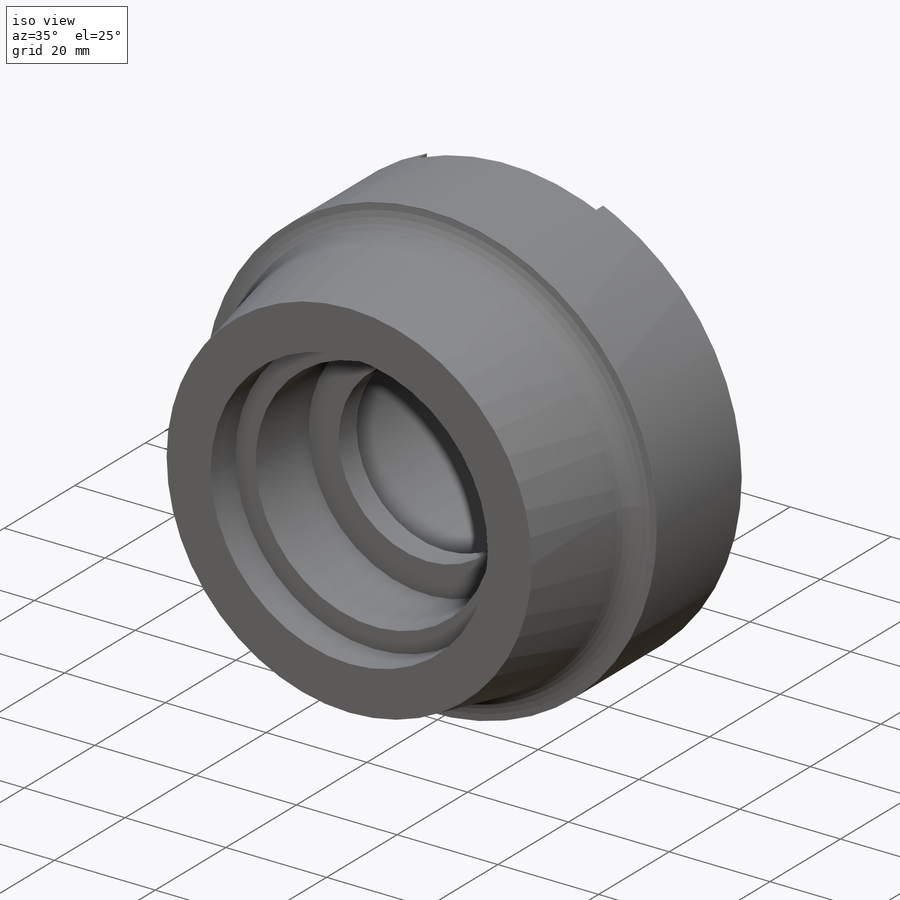
[diagram: iso view]
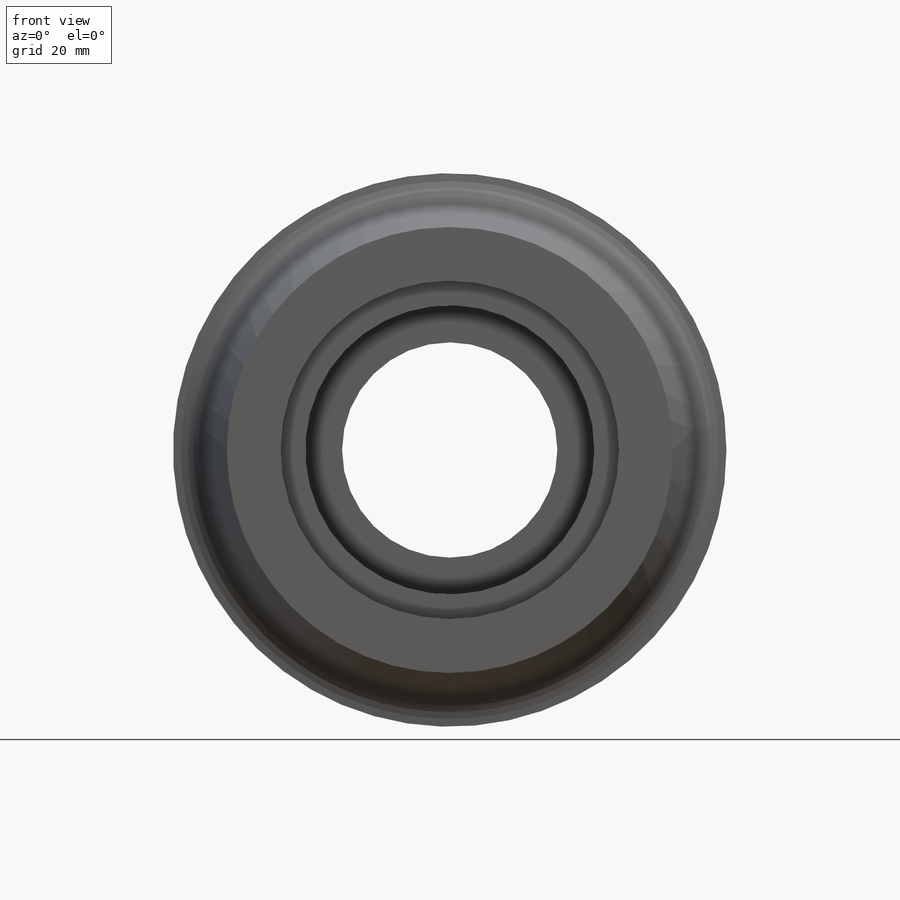
[diagram: front view]
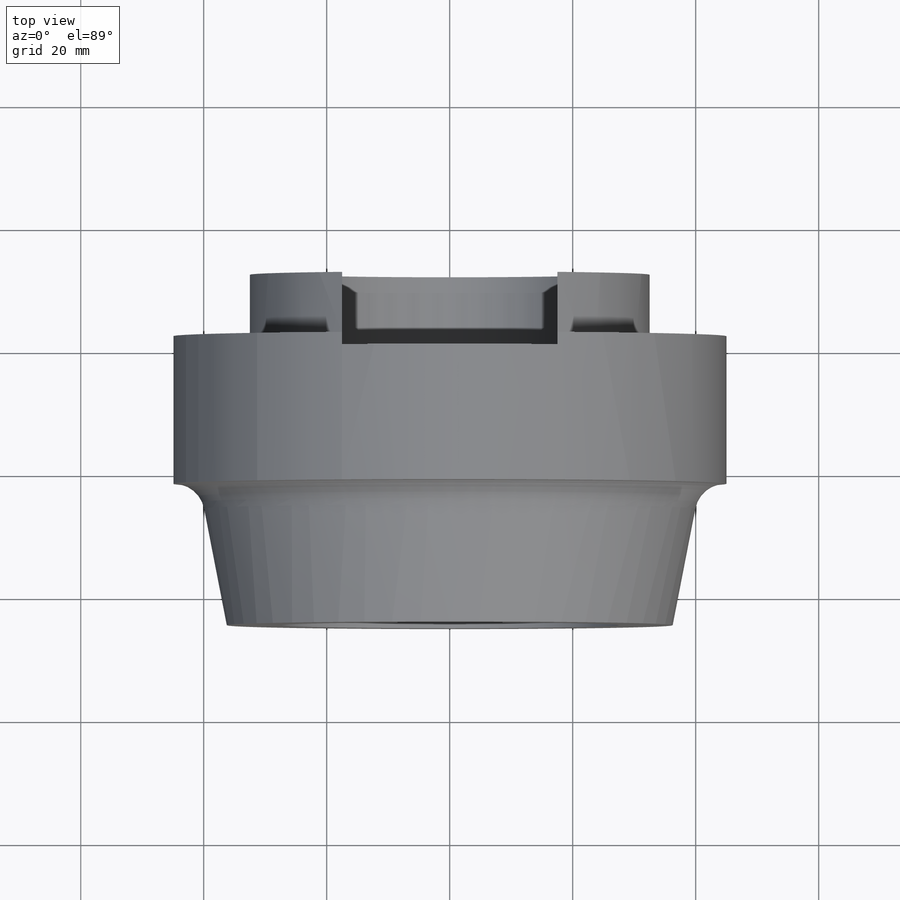
[diagram: top view]
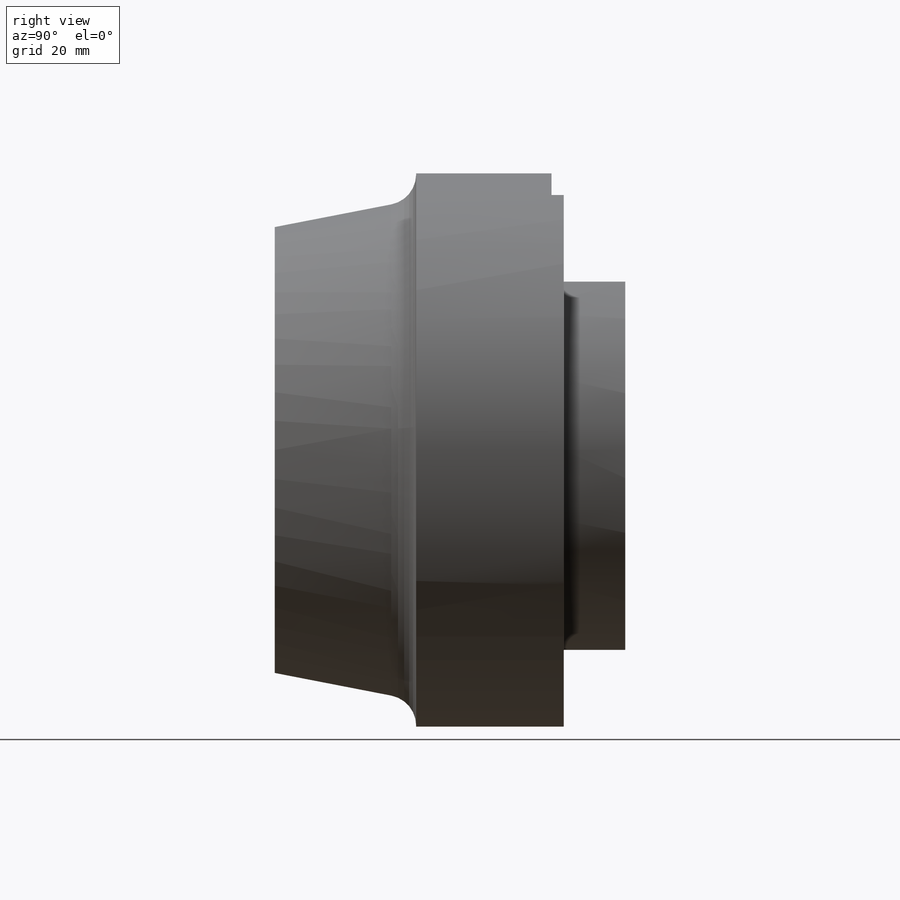
[diagram: right view]
SOLIDWORKS PART (.sldprt)
format: sldprt  version: not decoded by parser v0  size: 409,088 bytes
history: native  units: mm
features: sketch x12, cut_extrude x8, extrude x4, material x1, plane x1, fillet x1 (+11 scaffold rows collapsed)
feature tree (38):
  scaffold x11  (default folders/planes/origin — collapsed)
  material  "Material <not specified>"
  sketch  "Sketch1"
  extrude  "Boss-Extrude1"  Depth=45mm
  sketch  "Sketch2"
  cut_extrude  "Cut-Extrude1"  [1 undecoded]
  sketch  "Sketch3"
  extrude  "Boss-Extrude2"  [1 undecoded]
  sketch  "Sketch4"  dims[D1=~2.005352deg]
  cut_extrude  "Cut-Extrude2"  [1 undecoded]
  sketch  "Sketch5"  dims[D1=~2.692902deg]
  cut_extrude  "Cut-Extrude3"  [1 undecoded]
  sketch  "Sketch6"  dims[D1=~3.151268deg]
  cut_extrude  "Cut-Extrude4"  [1 undecoded]
  sketch  "Sketch7"  dims[D1=~2.692902deg]
  cut_extrude  "Cut-Extrude5"  [1 undecoded]
  plane  "Plane1"
  sketch  "Sketch8"  dims[D1=~0.687549deg D2=~2.864789deg D3=~0.54431deg]
  cut_extrude  "Cut-Extrude6"  [1 undecoded]
  sketch  "Sketch9"  dims[D1=~2.005352deg D2=~3.151268deg]
  cut_extrude  "Cut-Extrude7"  [1 undecoded]
  sketch  "Sketch10"  dims[D1=0.0deg]
  cut_extrude  "Cut-Extrude8"  [1 undecoded]
  sketch  "Sketch11"  dims[D1=0.0deg]
  extrude  "Boss-Extrude3"  [1 undecoded]
  sketch  "Sketch12"
  extrude  "Boss-Extrude4"  [1 undecoded]
  fillet  "Fillet1"  [1 undecoded]
decode coverage: 9 of 25 modeling features carry decoded parameters
note: ~ marks probable driven/reference dimensions
note: 12 parameter values undecoded
summary: no parameter record found for 12 features
note: suppression state not decoded; provenance and decode notes live in map.json
